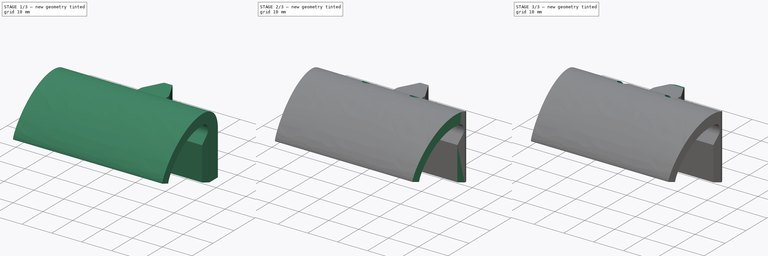
[diagram: build sequence overview — one tinted view per stage of 3, left to right]
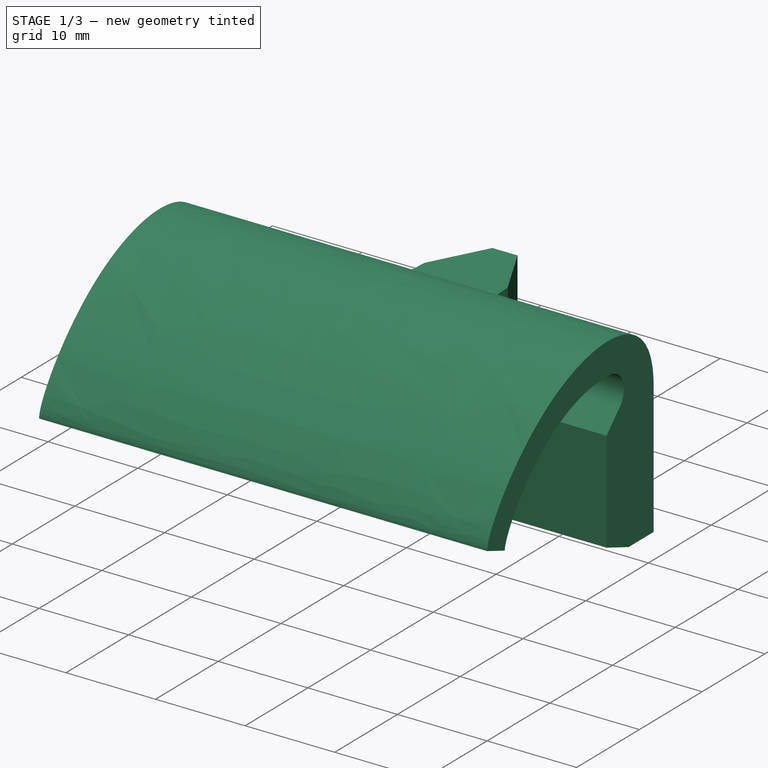
[diagram: stage 1 of 3 — iso view after this stage's code; geometry added in this stage tinted green]
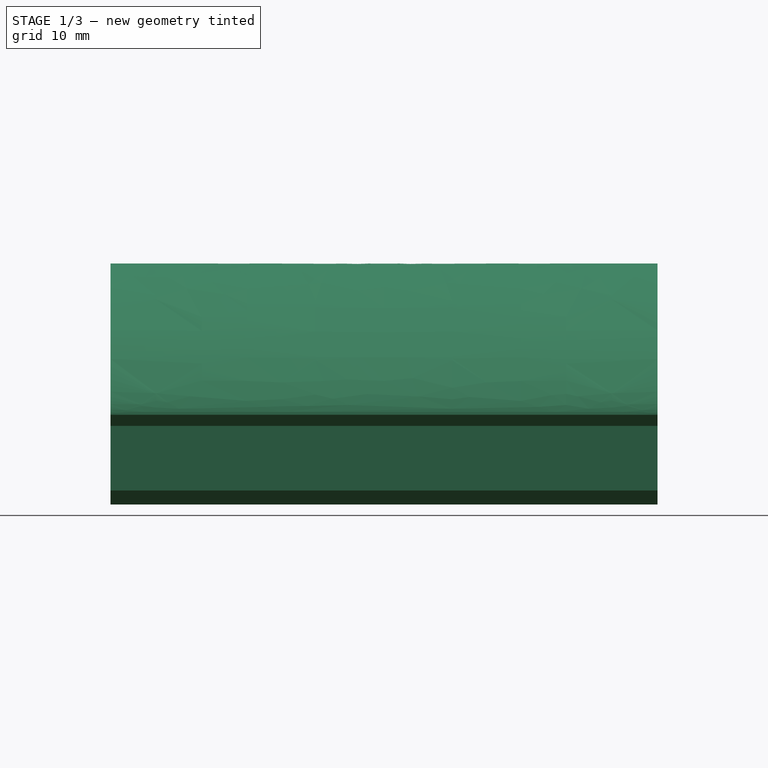
[diagram: stage 1 of 3 — front view after this stage's code; geometry added in this stage tinted green]
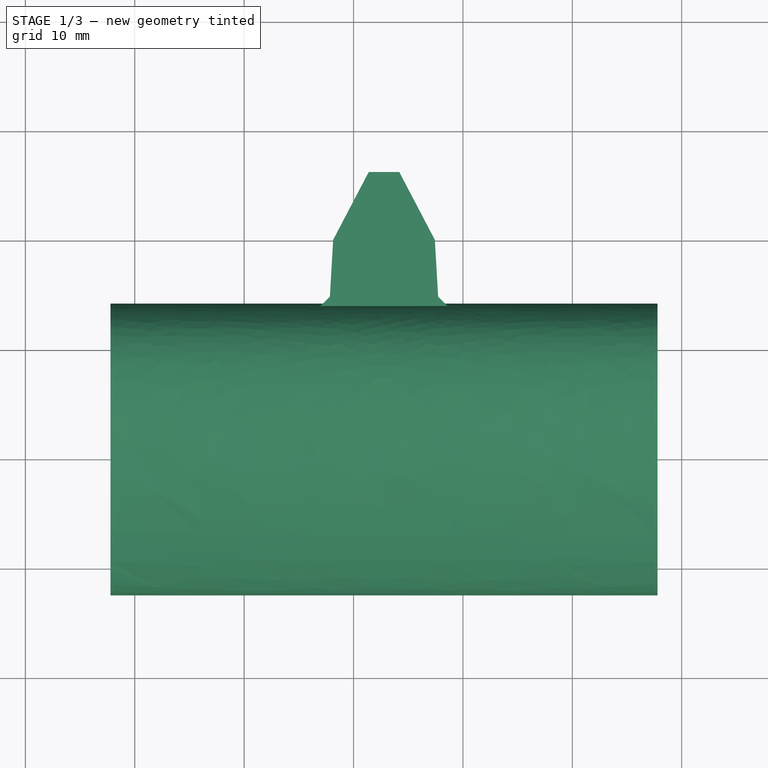
[diagram: stage 1 of 3 — top view after this stage's code; geometry added in this stage tinted green]
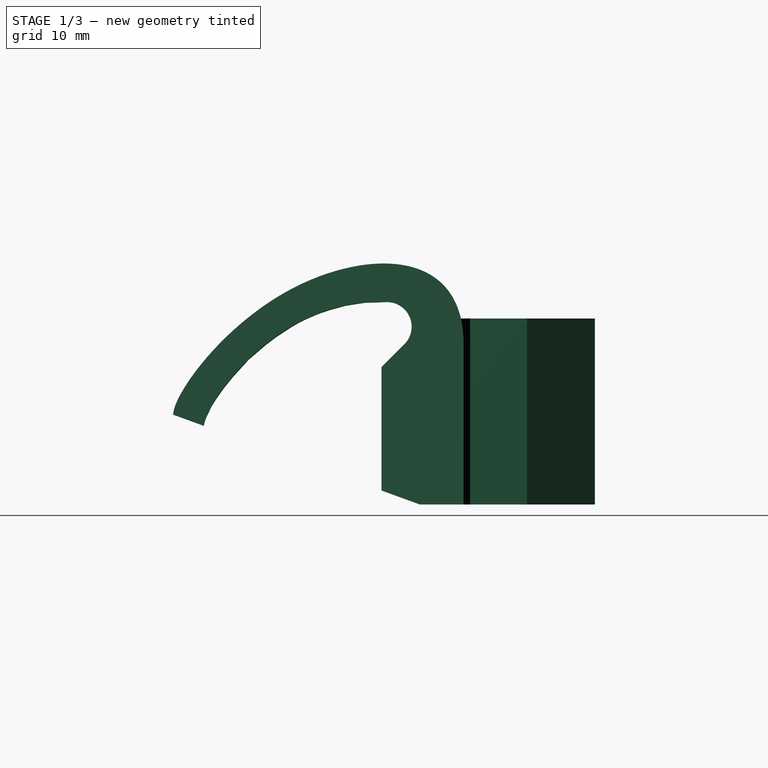
[diagram: stage 1 of 3 — right view after this stage's code; geometry added in this stage tinted green]
FCSTD DOCUMENT  (FreeCAD 0.20R25429 (Git))
Label: stollen_n11
License: All rights reserved
LicenseURL: http://en.wikipedia.org/wiki/All_rights_reserved
objects: Sketcher::SketchObject×6, PartDesign::Pocket×4, PartDesign::Pad×2, PartDesign::Body×1
note: 19 computed .brp shape members not serialized (recipe doc carries the construction recipe); baked Part::Feature solids carry a one-line shape summary decoded from their .brp

FEATURE [Sketcher::SketchObject] Sketch006  label="profil"
  FullyConstrained = false
  MapMode = 5
  Placement = pos=(32.7848,3.36022e-06,0) rot=(0.57735,0.57735,0.57735;2.0944rad)
  sketch-geometry (26):
    g0: LineSegment StartX=-22.5526 StartY=8.20848 StartZ=0 EndX=-19.7335 EndY=7.18242 EndZ=0
    g1-g5: Circle x5 (B-spline internal-alignment scaffolding for g6; pole/knot coordinates omitted)
    g6: BSplineCurve PolesCount=5 KnotsCount=3 Degree=3 IsPeriodic=0
    g7: GeomPoint X=4 Y=15 Z=0
    g8: GeomPoint X=-11.4367 Y=19.8663 Z=0
    g9: GeomPoint X=-22.5526 Y=8.20848 Z=0
    g10-g13: Circle x4 (B-spline internal-alignment scaffolding for g14; pole/knot coordinates omitted)
    g14: BSplineCurve PolesCount=4 KnotsCount=2 Degree=3 IsPeriodic=0
    g15: GeomPoint X=-3 Y=18.5 Z=0
    g16: GeomPoint X=-19.7335 Y=7.18242 Z=0
    g17: LineSegment StartX=-1.40901 StartY=14.659 StartZ=0 EndX=-3.5 EndY=12.568 EndZ=0
    g18: LineSegment StartX=-3.5 StartY=12.568 StartZ=0 EndX=-3.5 EndY=1.2739 EndZ=0
    g19: LineSegment StartX=4 StartY=0 StartZ=0 EndX=4 EndY=15 EndZ=0
    g20: ArcOfCircle CenterX=-3 CenterY=16.25 CenterZ=0 NormalX=0 NormalY=0 NormalZ=1 AngleXU=0 Radius=2.25 StartAngle=5.49779 EndAngle=7.85398
    g21: LineSegment StartX=4 StartY=0 StartZ=0 EndX=0 EndY=0 EndZ=0
    g22: LineSegment StartX=0 StartY=0 StartZ=0 EndX=-3.5 EndY=1.2739 EndZ=0
    g23: LineSegment StartX=0 StartY=0 StartZ=0 EndX=-22.5526 EndY=8.20848 EndZ=0
    g24: LineSegment StartX=-22.5526 StartY=10.0269 StartZ=0 EndX=-22.5526 EndY=8.20848 EndZ=0
    g25: LineSegment StartX=-19.7335 StartY=7.18242 StartZ=0 EndX=-19.7335 EndY=9.00088 EndZ=0
  constraints (50):
    c: Weight(g1) = 1
    c: Equal(g1, g2-g5) x4
    c: Coincident(g6,g0)
    c: InternalAlignment(g1-g5 -> g6) x5
    c: InternalAlignment(g7,g6)
    c: InternalAlignment(g8,g6)
    c: InternalAlignment(g9,g6)
    c: Weight(g10) = 1
    c: Equal(g10,g11)
    c: Equal(g10,g12)
    c: Equal(g10,g13)
    c: Coincident(g14,g0)
    c: InternalAlignment(g10-g13 -> g14) x4
    c: InternalAlignment(g15,g14)
    c: InternalAlignment(g16,g14)
    c: Coincident(g17,g18)
    c: Coincident(g19,g6)
    c: Vertical(g19)
    c: Coincident(g20,g14)
    c: Coincident(g19,g21)
    c: PointOnObject(g21,g-1)
    c: Horizontal(g21)
    c: Coincident(g21,g22)
    c: Coincident(g22,g18)
    c: Coincident(g23,g21)
    c: Coincident(g23,g0)
    c: PointOnObject(g0,g23)
    c: PointOnObject(g18,g23)
    c: Angle(g23) = 2.79253
    c: Diameter(g20) = 4.5
    c: DistanceY(g19,g19) = 15
    c: Vertical(g18)
    c: DistanceX(g21,g21) = 4
    c: Distance(g23) = 24
    c: Tangent(g20,g17) = 1.5708
    c: Distance(g0) = 3
    c: Coincident(g24,g4)
    c: Coincident(g24,g0)
    c: Vertical(g24)
    c: Coincident(g25,g0)
    c: Coincident(g25,g12)
    c: Vertical(g25)
    c: Equal(g24,g25)
    c: DistanceX(g20) = -3
    c: DistanceX(g19) = 4
    c: DistanceX(g18) = -3.5
    c: DistanceY(g20) = 16.25
    c: Angle(g17) = -2.35619
    c: DistanceY(g14) = 18.5
    c: Vertical(g20,g14)
FEATURE [PartDesign::Pad] Pad
  Direction = (1,1.02493e-07,1e-16)
  Length = 50
  Length2 = 100
  Midplane = true
  Placement = pos=(32.7848,3.36022e-06,0) rot=(0.57735,0.57735,0.57735;2.0944rad)
  Profile = -> Sketch006
  Reversed = true
  Type = 0
FEATURE [Sketcher::SketchObject] Sketch008  label="nose"
  ExternalGeometry = -> [Pad]
  FullyConstrained = true
  MapMode = 5
  Placement = pos=(32.7848,3.36022e-06,0) rot=(0.707107,0.707107,0;3.14159rad)
  Support = -> [Pad]
  sketch-geometry (8):
    g0: LineSegment StartX=3.05 StartY=6.5 StartZ=0 EndX=3.05 EndY=-6.5 EndZ=0
    g1: LineSegment StartX=3.05 StartY=-6.5 StartZ=0 EndX=4.6 EndY=-4.95 EndZ=0
    g2: LineSegment StartX=4.6 StartY=-4.95 StartZ=0 EndX=9.8 EndY=-4.65 EndZ=0
    g3: LineSegment StartX=9.8 StartY=-4.65 StartZ=0 EndX=16 EndY=-1.4 EndZ=0
    g4: LineSegment StartX=16 StartY=-1.4 StartZ=0 EndX=16 EndY=1.4 EndZ=0
    g5: LineSegment StartX=16 StartY=1.4 StartZ=0 EndX=9.8 EndY=4.65 EndZ=0
    g6: LineSegment StartX=9.8 StartY=4.65 StartZ=0 EndX=4.6 EndY=4.95 EndZ=0
    g7: LineSegment StartX=4.6 StartY=4.95 StartZ=0 EndX=3.05 EndY=6.5 EndZ=0
  constraints (20):
    c: Coincident(g0,g1)
    c: Coincident(g1,g2)
    c: Coincident(g2,g3)
    c: Coincident(g3,g4)
    c: Coincident(g4,g5)
    c: Coincident(g5,g6)
    c: Coincident(g6,g7)
    c: Coincident(g7,g0)
    c: DistanceY(g0,g0) = 13
    c: DistanceY(g1,g6) = 9.9
    c: DistanceY(g2,g5) = 9.3
    c: DistanceY(g4,g4) = 2.8
    c: DistanceX(g0,g1) = 1.55
    c: DistanceX(g1,g2) = 5.2
    c: DistanceX(g2,g3) = 6.2
    c: Symmetric(g0,g0,g-1)
    c: Symmetric(g6,g1,g-1)
    c: Symmetric(g2,g5,g-1)
    c: Symmetric(g3,g4,g-1)
    c: DistanceX(g-3,g1) = 0.6
FEATURE [PartDesign::Pad] Pad001
  BaseFeature = -> Pad
  Direction = (2e-16,-2e-16,-1)
  Length = 17
  Length2 = 100
  Placement = pos=(32.7848,3.36022e-06,0) rot=(0.57735,0.57735,0.57735;2.0944rad)
  Profile = -> Sketch008
  Reversed = true
  Type = 0
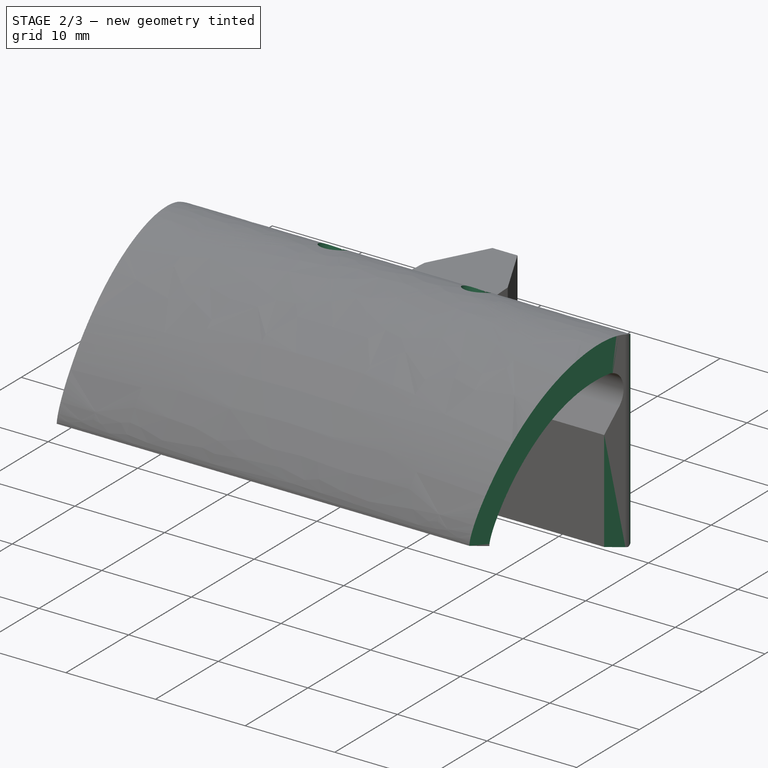
[diagram: stage 2 of 3 — iso view after this stage's code; geometry added in this stage tinted green]
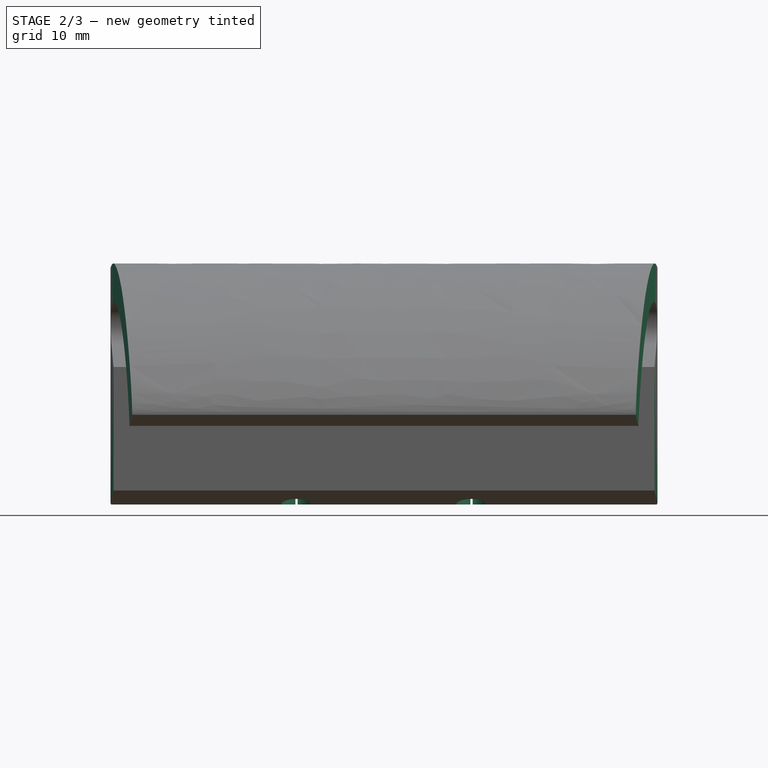
[diagram: stage 2 of 3 — front view after this stage's code; geometry added in this stage tinted green]
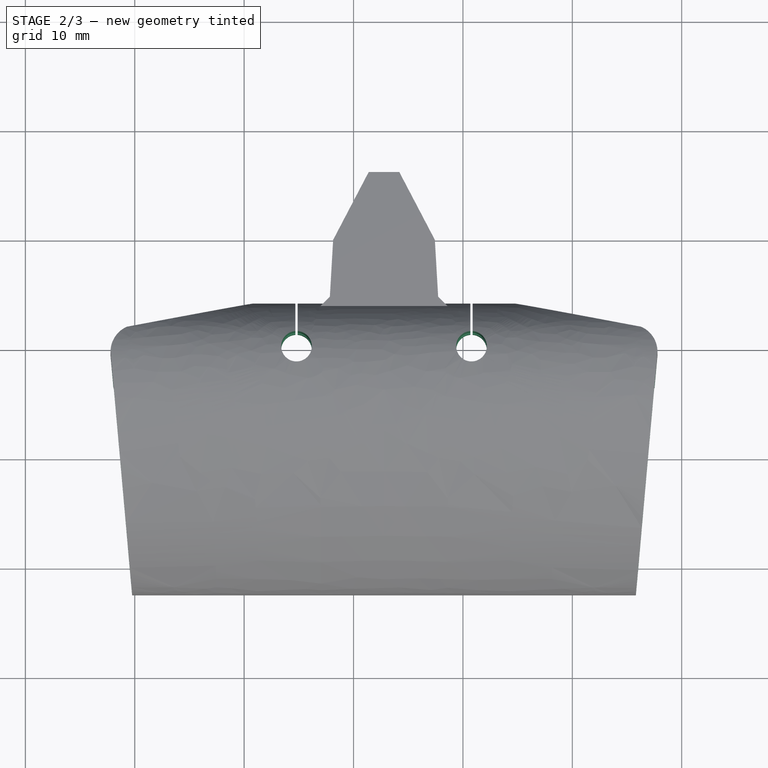
[diagram: stage 2 of 3 — top view after this stage's code; geometry added in this stage tinted green]
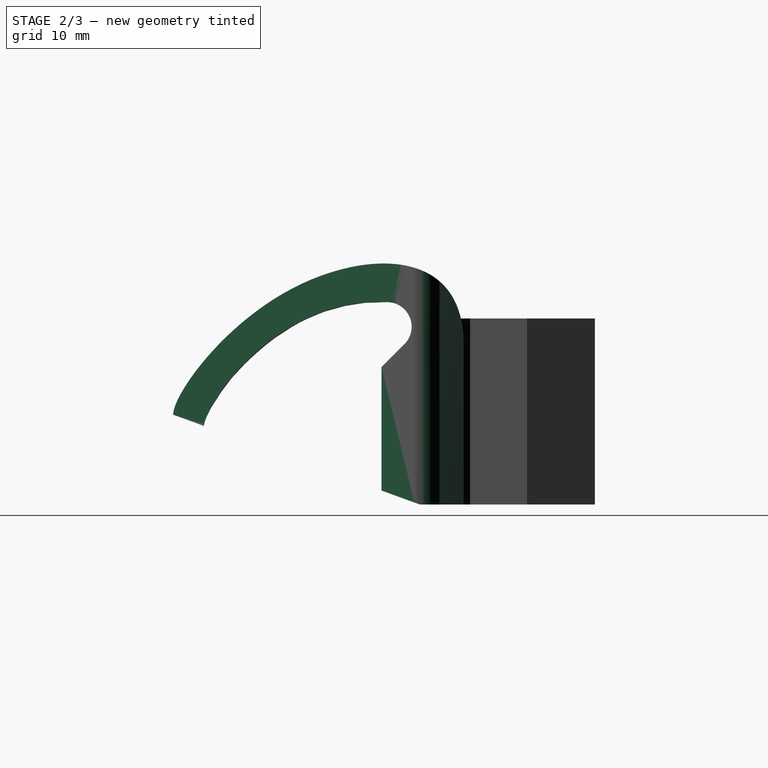
[diagram: stage 2 of 3 — right view after this stage's code; geometry added in this stage tinted green]
FEATURE [Sketcher::SketchObject] Sketch009  label="holes and top contour"
  ExternalGeometry = -> [Pad001]
  FullyConstrained = true
  MapMode = 5
  Placement = pos=(32.7848,3.36022e-06,5.6e-15) rot=(0.707107,0.707107,0;3.14159rad)
  Support = -> [Pad001]
  sketch-geometry (22):
    g0: ArcOfCircle CenterX=0 CenterY=-8 CenterZ=0 NormalX=0 NormalY=0 NormalZ=1 AngleXU=0 Radius=1.4 StartAngle=0.0714894 EndAngle=6.2117
    g1: ArcOfCircle CenterX=0 CenterY=8 CenterZ=0 NormalX=0 NormalY=0 NormalZ=1 AngleXU=0 Radius=1.4 StartAngle=0.0714894 EndAngle=6.2117
    g2: LineSegment StartX=-34 StartY=-26 StartZ=0 EndX=4 EndY=-26 EndZ=0
    g3: LineSegment StartX=4 StartY=-26 StartZ=0 EndX=4 EndY=-12 EndZ=0
    g4: LineSegment StartX=-34 StartY=26 StartZ=0 EndX=4 EndY=26 EndZ=0
    g5: LineSegment StartX=4 StartY=26 StartZ=0 EndX=4 EndY=12 EndZ=0
    g6: LineSegment StartX=4 StartY=-12 StartZ=0 EndX=1.8 EndY=-23.5 EndZ=0
    g7: LineSegment StartX=1.8 StartY=23.5 StartZ=0 EndX=4 EndY=12 EndZ=0
    g8: LineSegment StartX=-0.5 StartY=-25 StartZ=0 EndX=-34 EndY=-22 EndZ=0
    g9: LineSegment StartX=-34 StartY=-22 StartZ=0 EndX=-34 EndY=-26 EndZ=0
    g10: LineSegment StartX=-34 StartY=26 StartZ=0 EndX=-34 EndY=22 EndZ=0
    g11: LineSegment StartX=-34 StartY=22 StartZ=0 EndX=-0.5 EndY=25 EndZ=0
    g12: LineSegment StartX=1.39642 StartY=8.1 StartZ=0 EndX=4 EndY=8.1 EndZ=0
    g13: LineSegment StartX=4 StartY=8.1 StartZ=0 EndX=4 EndY=7.9 EndZ=0
    g14: LineSegment StartX=4 StartY=7.9 StartZ=0 EndX=1.39642 EndY=7.9 EndZ=0
    g15: LineSegment StartX=0 StartY=7.9 StartZ=0 EndX=0 EndY=8.1 EndZ=0
    g16: LineSegment StartX=1.39642 StartY=-7.9 StartZ=0 EndX=4 EndY=-7.9 EndZ=0
    g17: LineSegment StartX=4 StartY=-7.9 StartZ=0 EndX=4 EndY=-8.1 EndZ=0
    g18: LineSegment StartX=4 StartY=-8.1 StartZ=0 EndX=1.39642 EndY=-8.1 EndZ=0
    g19: LineSegment StartX=0 StartY=-8.1 StartZ=0 EndX=0 EndY=-7.9 EndZ=0
    g20: ArcOfCircle CenterX=-0.5 CenterY=22.4867 CenterZ=0 NormalX=0 NormalY=0 NormalZ=1 AngleXU=0 Radius=2.51333 StartAngle=0.414992 EndAngle=1.5708
    g21: ArcOfCircle CenterX=-0.5 CenterY=-22.4867 CenterZ=0 NormalX=0 NormalY=0 NormalZ=1 AngleXU=0 Radius=2.51333 StartAngle=4.71239 EndAngle=5.86819
  constraints (64):
    c: Diameter(g0) = 2.8
    c: Equal(g0,g1) = 3
    c: Symmetric(g1,g0,g-1)
    c: DistanceY(g0,g1) = 16
    c: Horizontal(g2)
    c: Coincident(g2,g3)
    c: Vertical(g3)
    c: Coincident(g4,g5)
    c: Vertical(g5)
    c: Horizontal(g4)
    c: Symmetric(g5,g3,g-1)
    c: Symmetric(g2,g4,g-1)
    c: DistanceY(g3) = -12
    c: DistanceY(g2) = -26
    c: Coincident(g3,g6)
    c: Coincident(g7,g5)
    c: Symmetric(g7,g6,g-1)
    c: DistanceY(g6) = -23.5
    c: Coincident(g8,g9)
    c: Vertical(g9)
    c: Coincident(g2,g9)
    c: DistanceY(g8) = -25
    c: Coincident(g4,g10)
    c: Coincident(g10,g11)
    c: Symmetric(g8,g11,g-1)
    c: Symmetric(g8,g10,g-1)
    c: DistanceY(g8,g10) = 44
    c: DistanceX(g6,g2) = 2.2
    c: DistanceX(g8,g2) = 4.5
    c: PointOnObject(g3,g-3)
    c: PointOnObject(g0,g-2)
    c: Coincident(g12,g13)
    c: Coincident(g13,g14)
    c: Horizontal(g12)
    c: Horizontal(g14)
    c: Vertical(g13)
    c: Vertical(g15)
    c: Coincident(g16,g17)
    c: Coincident(g17,g18)
    c: Horizontal(g16)
    c: Horizontal(g18)
    c: Vertical(g17)
    c: Vertical(g19)
    c: Equal(g13,g17)
    c: Vertical(g13,g16)
    c: PointOnObject(g17,g-3)
    c: DistanceY(g13,g13) = 0.2
    c: Coincident(g16,g0)
    c: Coincident(g18,g0)
    c: Coincident(g12,g1)
    c: Coincident(g14,g1)
    c: PointOnObject(g15,g12)
    c: PointOnObject(g15,g14)
    c: PointOnObject(g19,g16)
    c: PointOnObject(g19,g18)
    c: Symmetric(g19,g19,g0)
    c: Symmetric(g15,g15,g1)
    c: DistanceX(g4,g4) = 38
    c: Coincident(g20,g11)
    c: Coincident(g20,g7)
    c: Vertical(g20,g11)
    c: Coincident(g21,g8)
    c: Coincident(g21,g6)
    c: Vertical(g21,g8)
FEATURE [PartDesign::Pocket] Pocket
  BaseFeature = -> Pad001
  Length = 5
  Length2 = 100
  Placement = pos=(32.7848,3.36022e-06,0) rot=(0.57735,0.57735,0.57735;2.0944rad)
  Profile = -> Sketch009
  Type = 1
FEATURE [Sketcher::SketchObject] Sketch010  label="top openings"
  FullyConstrained = true
  MapMode = 5
  Placement = pos=(32.7848,4,-2.2e-15) rot=(-0.57735,-0.57735,-0.57735;2.0944rad)
  Support = -> [Pocket]
  sketch-geometry (8):
    g0: LineSegment StartX=5.5 StartY=10 StartZ=0 EndX=9.5 EndY=10 EndZ=0
    g1: LineSegment StartX=9.5 StartY=10 StartZ=0 EndX=9.5 EndY=6 EndZ=0
    g2: LineSegment StartX=9.5 StartY=6 StartZ=0 EndX=5.5 EndY=6 EndZ=0
    g3: LineSegment StartX=5.5 StartY=6 StartZ=0 EndX=5.5 EndY=10 EndZ=0
    g4: LineSegment StartX=5.5 StartY=-6 StartZ=0 EndX=9.5 EndY=-6 EndZ=0
    g5: LineSegment StartX=9.5 StartY=-6 StartZ=0 EndX=9.5 EndY=-10 EndZ=0
    g6: LineSegment StartX=9.5 StartY=-10 StartZ=0 EndX=5.5 EndY=-10 EndZ=0
    g7: LineSegment StartX=5.5 StartY=-10 StartZ=0 EndX=5.5 EndY=-6 EndZ=0
  constraints (23):
    c: Coincident(g0,g1)
    c: Coincident(g1,g2)
    c: Coincident(g2,g3)
    c: Coincident(g3,g0)
    c: Horizontal(g0)
    c: Horizontal(g2)
    c: Vertical(g1)
    c: Vertical(g3)
    c: Coincident(g4,g5)
    c: Coincident(g5,g6)
    c: Coincident(g6,g7)
    c: Coincident(g7,g4)
    c: Horizontal(g4)
    c: Horizontal(g6)
    c: Vertical(g5)
    c: Vertical(g7)
    c: Equal(g6,g5)
    c: Equal(g5,g2)
    c: Equal(g2,g1)
    c: DistanceY(g1,g1) = 4
    c: Symmetric(g4,g1,g-1)
    c: DistanceY(g6,g2) = 16
    c: DistanceX(g0) = 5.5
FEATURE [PartDesign::Pocket] Pocket001
  BaseFeature = -> Pocket
  Length = 6
  Length2 = 100
  Placement = pos=(32.7848,3.36022e-06,0) rot=(0.57735,0.57735,0.57735;2.0944rad)
  Profile = -> Sketch010
  Type = 0
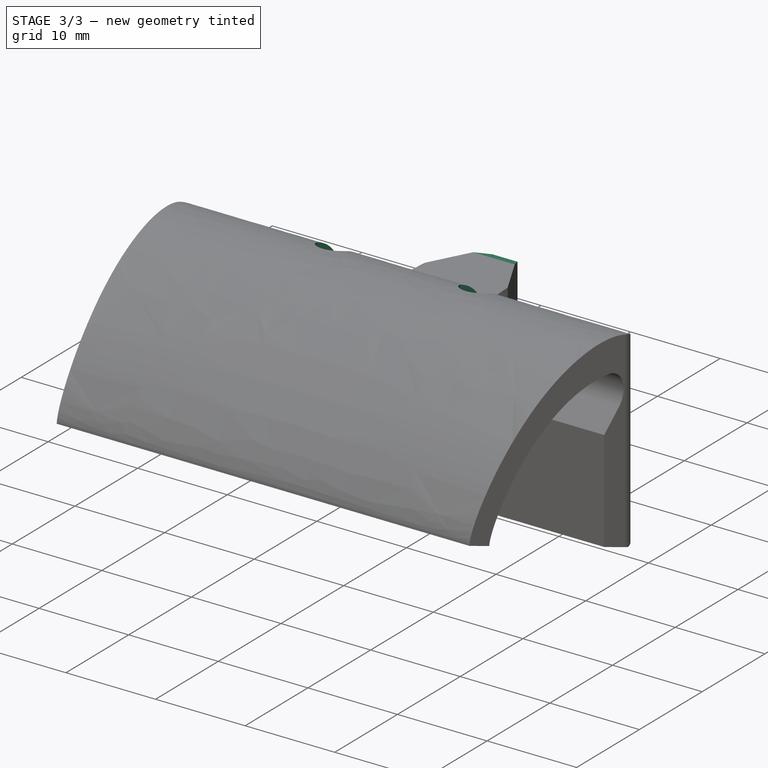
[diagram: stage 3 of 3 — iso view after this stage's code; geometry added in this stage tinted green]
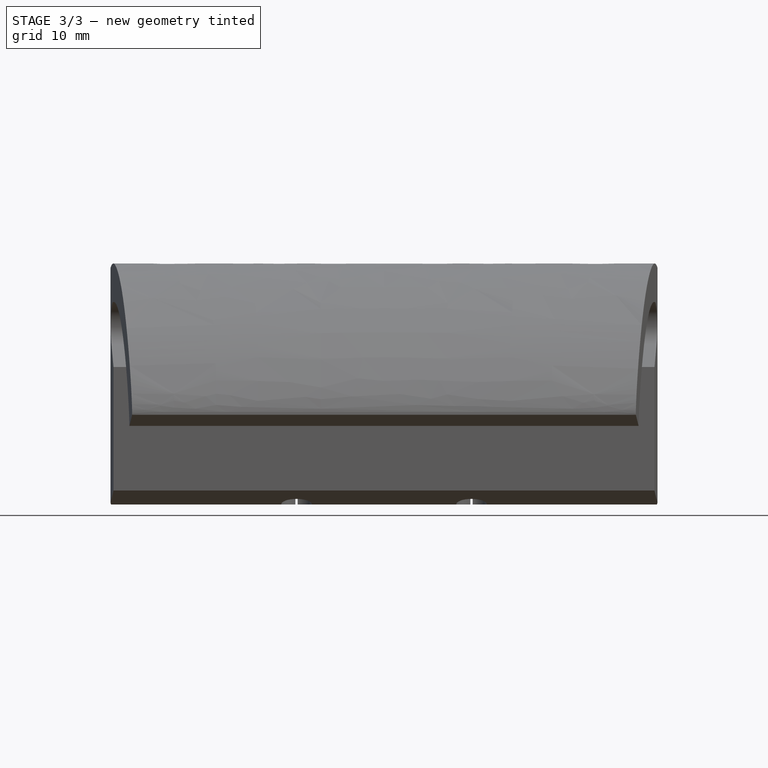
[diagram: stage 3 of 3 — front view after this stage's code; geometry added in this stage tinted green]
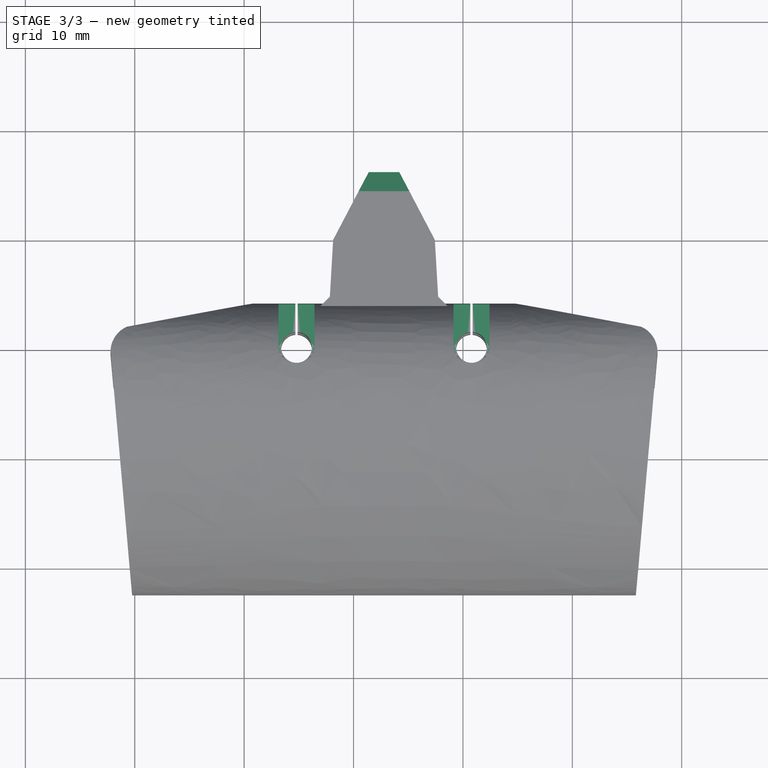
[diagram: stage 3 of 3 — top view after this stage's code; geometry added in this stage tinted green]
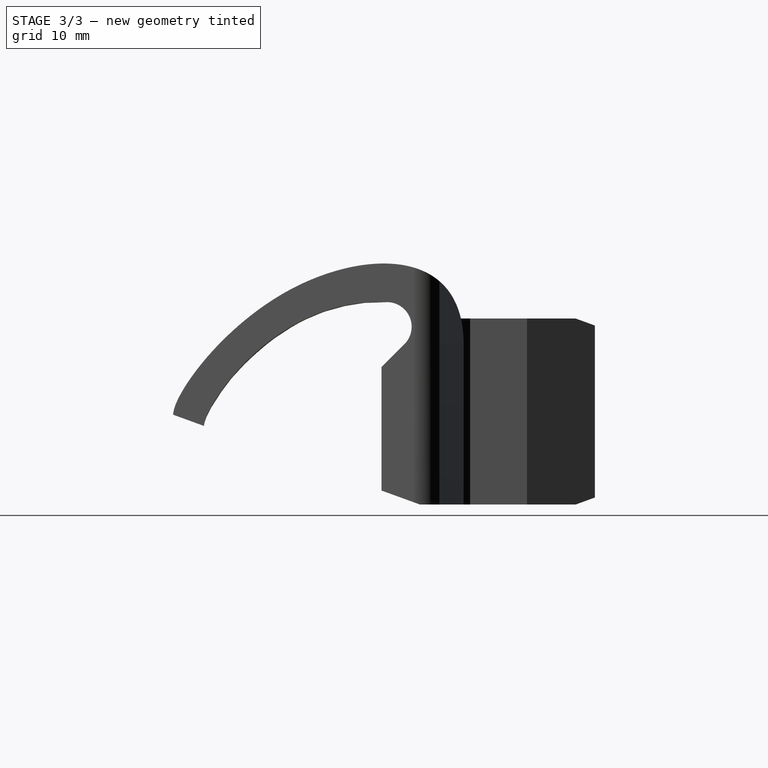
[diagram: stage 3 of 3 — right view after this stage's code; geometry added in this stage tinted green]
FEATURE [Sketcher::SketchObject] Sketch  label="Nose contour"
  FullyConstrained = false
  MapMode = 5
  Placement = pos=(0,0,0) rot=(0.57735,0.57735,0.57735;2.0944rad)
  Support = -> [YZ_Plane]
  sketch-geometry (6):
    g0: LineSegment StartX=11.165 StartY=18.1238 StartZ=0 EndX=17 EndY=18.1238 EndZ=0
    g1: LineSegment StartX=17 StartY=18.1238 StartZ=0 EndX=17 EndY=16 EndZ=0
    g2: LineSegment StartX=17 StartY=16 StartZ=0 EndX=11.165 EndY=18.1238 EndZ=0
    g3: LineSegment StartX=12.7341 StartY=-0.552658 StartZ=0 EndX=17 EndY=-0.552658 EndZ=0
    g4: LineSegment StartX=17 StartY=-0.552658 StartZ=0 EndX=17 EndY=1 EndZ=0
    g5: LineSegment StartX=17 StartY=1 StartZ=0 EndX=12.7341 EndY=-0.552658 EndZ=0
  constraints (12):
    c: Horizontal(g0)
    c: Coincident(g0,g1)
    c: Vertical(g1)
    c: Coincident(g1,g2)
    c: Coincident(g2,g0)
    c: Horizontal(g3)
    c: Coincident(g3,g4)
    c: Vertical(g4)
    c: Coincident(g4,g5)
    c: Coincident(g5,g3)
    c: Angle(g5) = -2.79253
    c: Angle(g2) = 2.79253
FEATURE [PartDesign::Pocket] Pocket002
  BaseFeature = -> Pocket001
  Length = 5
  Length2 = 100
  Midplane = true
  Placement = pos=(32.7848,3.36022e-06,0) rot=(0.57735,0.57735,0.57735;2.0944rad)
  Profile = -> Sketch
  Type = 1
FEATURE [Sketcher::SketchObject] Sketch011
  AttachmentOffset = pos=(0,0,-16) rot=(0,0,1;0rad)
  FullyConstrained = true
  MapMode = 5
  Placement = pos=(32.7848,3.36022e-06,16) rot=(0.707107,0.707107,0;3.14159rad)
  Support = -> [Pocket002]
  sketch-geometry (8):
    g0: ArcOfCircle CenterX=2e-16 CenterY=8 CenterZ=0 NormalX=0 NormalY=0 NormalZ=1 AngleXU=0 Radius=1.65 StartAngle=1.5708 EndAngle=4.71239
    g1: ArcOfCircle CenterX=2e-16 CenterY=-8 CenterZ=0 NormalX=0 NormalY=0 NormalZ=1 AngleXU=0 Radius=1.65 StartAngle=1.5708 EndAngle=4.71239
    g2: LineSegment StartX=-1e-16 StartY=9.65 StartZ=0 EndX=5 EndY=9.65 EndZ=0
    g3: LineSegment StartX=5 StartY=9.65 StartZ=0 EndX=5 EndY=6.35 EndZ=0
    g4: LineSegment StartX=5 StartY=6.35 StartZ=0 EndX=0 EndY=6.35 EndZ=0
    g5: LineSegment StartX=-1e-16 StartY=-6.35 StartZ=0 EndX=5 EndY=-6.35 EndZ=0
    g6: LineSegment StartX=5 StartY=-6.35 StartZ=0 EndX=5 EndY=-9.65 EndZ=0
    g7: LineSegment StartX=5 StartY=-9.65 StartZ=0 EndX=0 EndY=-9.65 EndZ=0
  constraints (23):
    c: PointOnObject(g0,g-2)
    c: PointOnObject(g0,g-2)
    c: PointOnObject(g1,g-2)
    c: PointOnObject(g1,g-2)
    c: Symmetric(g1,g0,g-1)
    c: Tangent(g0,g2) = 1.5708
    c: Coincident(g2,g3)
    c: Vertical(g3)
    c: Coincident(g3,g4)
    c: Coincident(g4,g0)
    c: Horizontal(g4)
    c: Tangent(g1,g5) = 1.5708
    c: Coincident(g5,g6)
    c: Vertical(g6)
    c: Coincident(g6,g7)
    c: Coincident(g7,g1)
    c: Horizontal(g7)
    c: Equal(g6,g3)
    c: Vertical(g3,g5)
    c: DistanceX(g5,g5) = 5
    c: DistanceY(g6,g6) = 3.3
    c: Horizontal(g5)
    c: DistanceY(g1,g0) = 16
FEATURE [PartDesign::Pocket] Pocket003
  BaseFeature = -> Pocket002
  Length = 5
  Length2 = 100
  Placement = pos=(32.7848,3.36022e-06,0) rot=(0.57735,0.57735,0.57735;2.0944rad)
  Profile = -> Sketch011
  Type = 1
FEATURE [PartDesign::Body] Body
  Group = -> [Sketch006,Pad,Sketch008,Sketch009,Sketch010,Pad001,Pocket,Pocket001,Sketch,Pocket002,Sketch011,Pocket003]
  Origin = -> Origin
  Tip = -> Pocket003
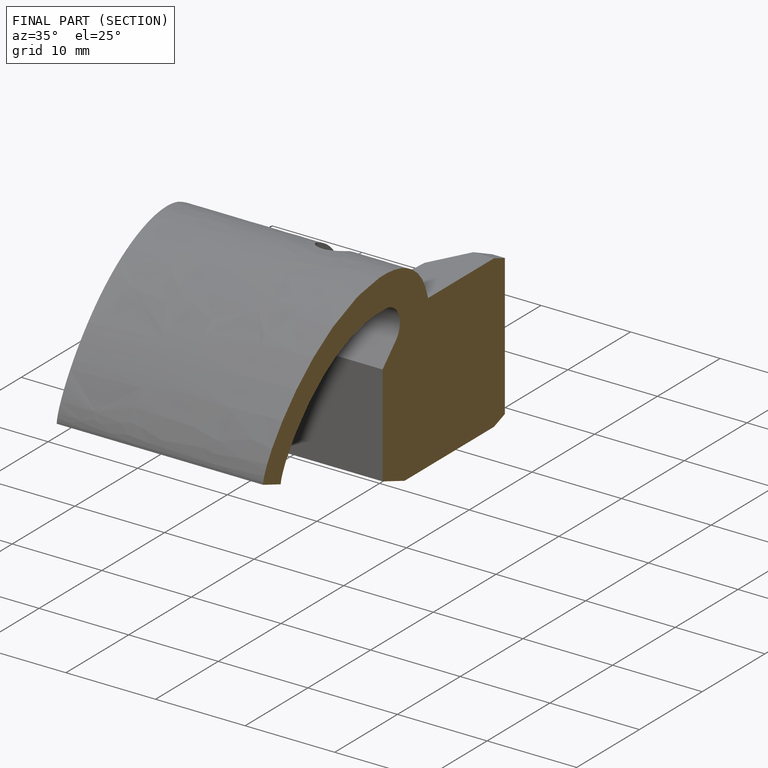
[diagram: finished part — half-section view (interior)]
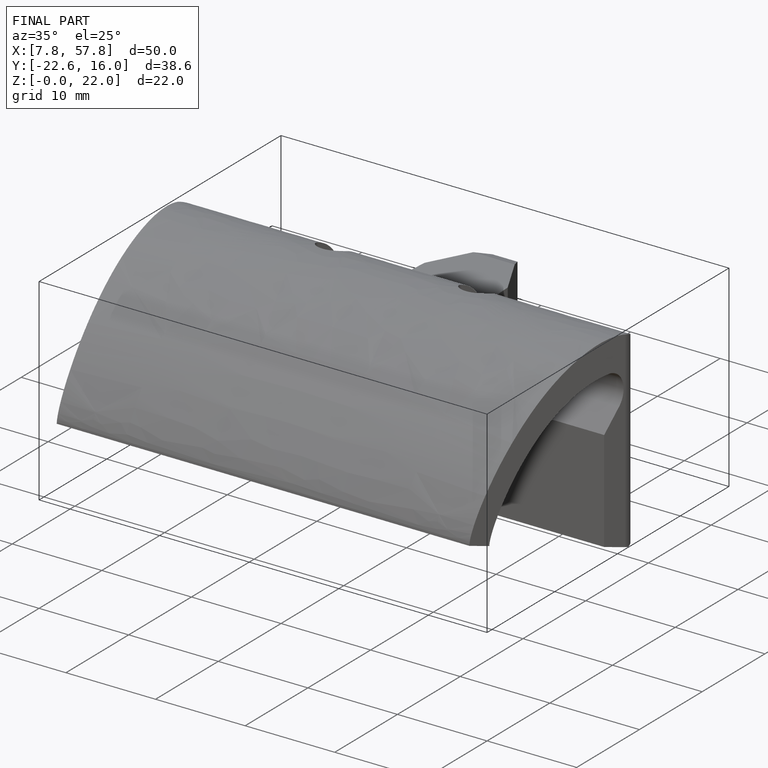
[diagram: finished part — iso view with bounding-box wireframe]
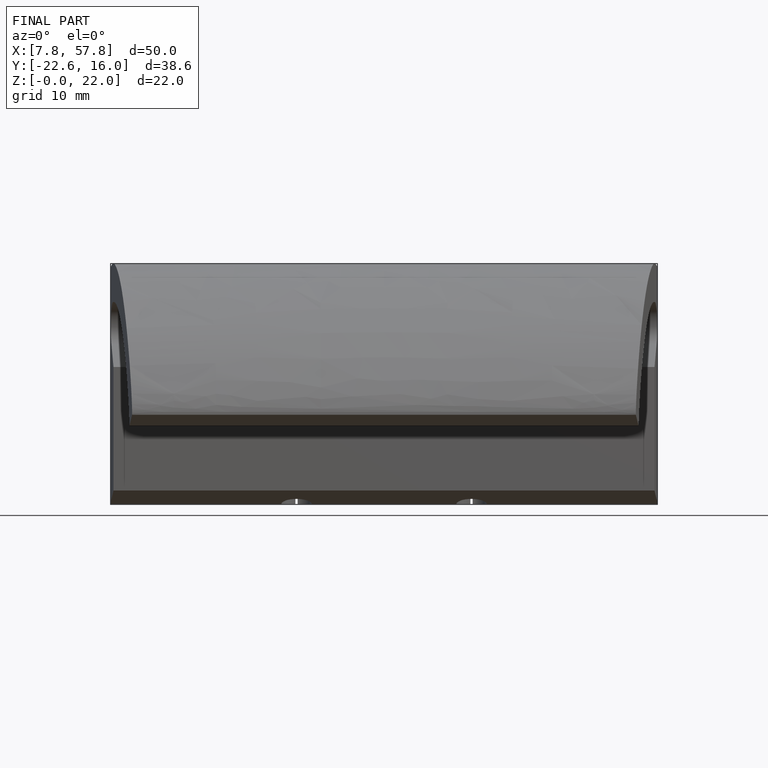
[diagram: finished part — front view with bounding-box wireframe]
